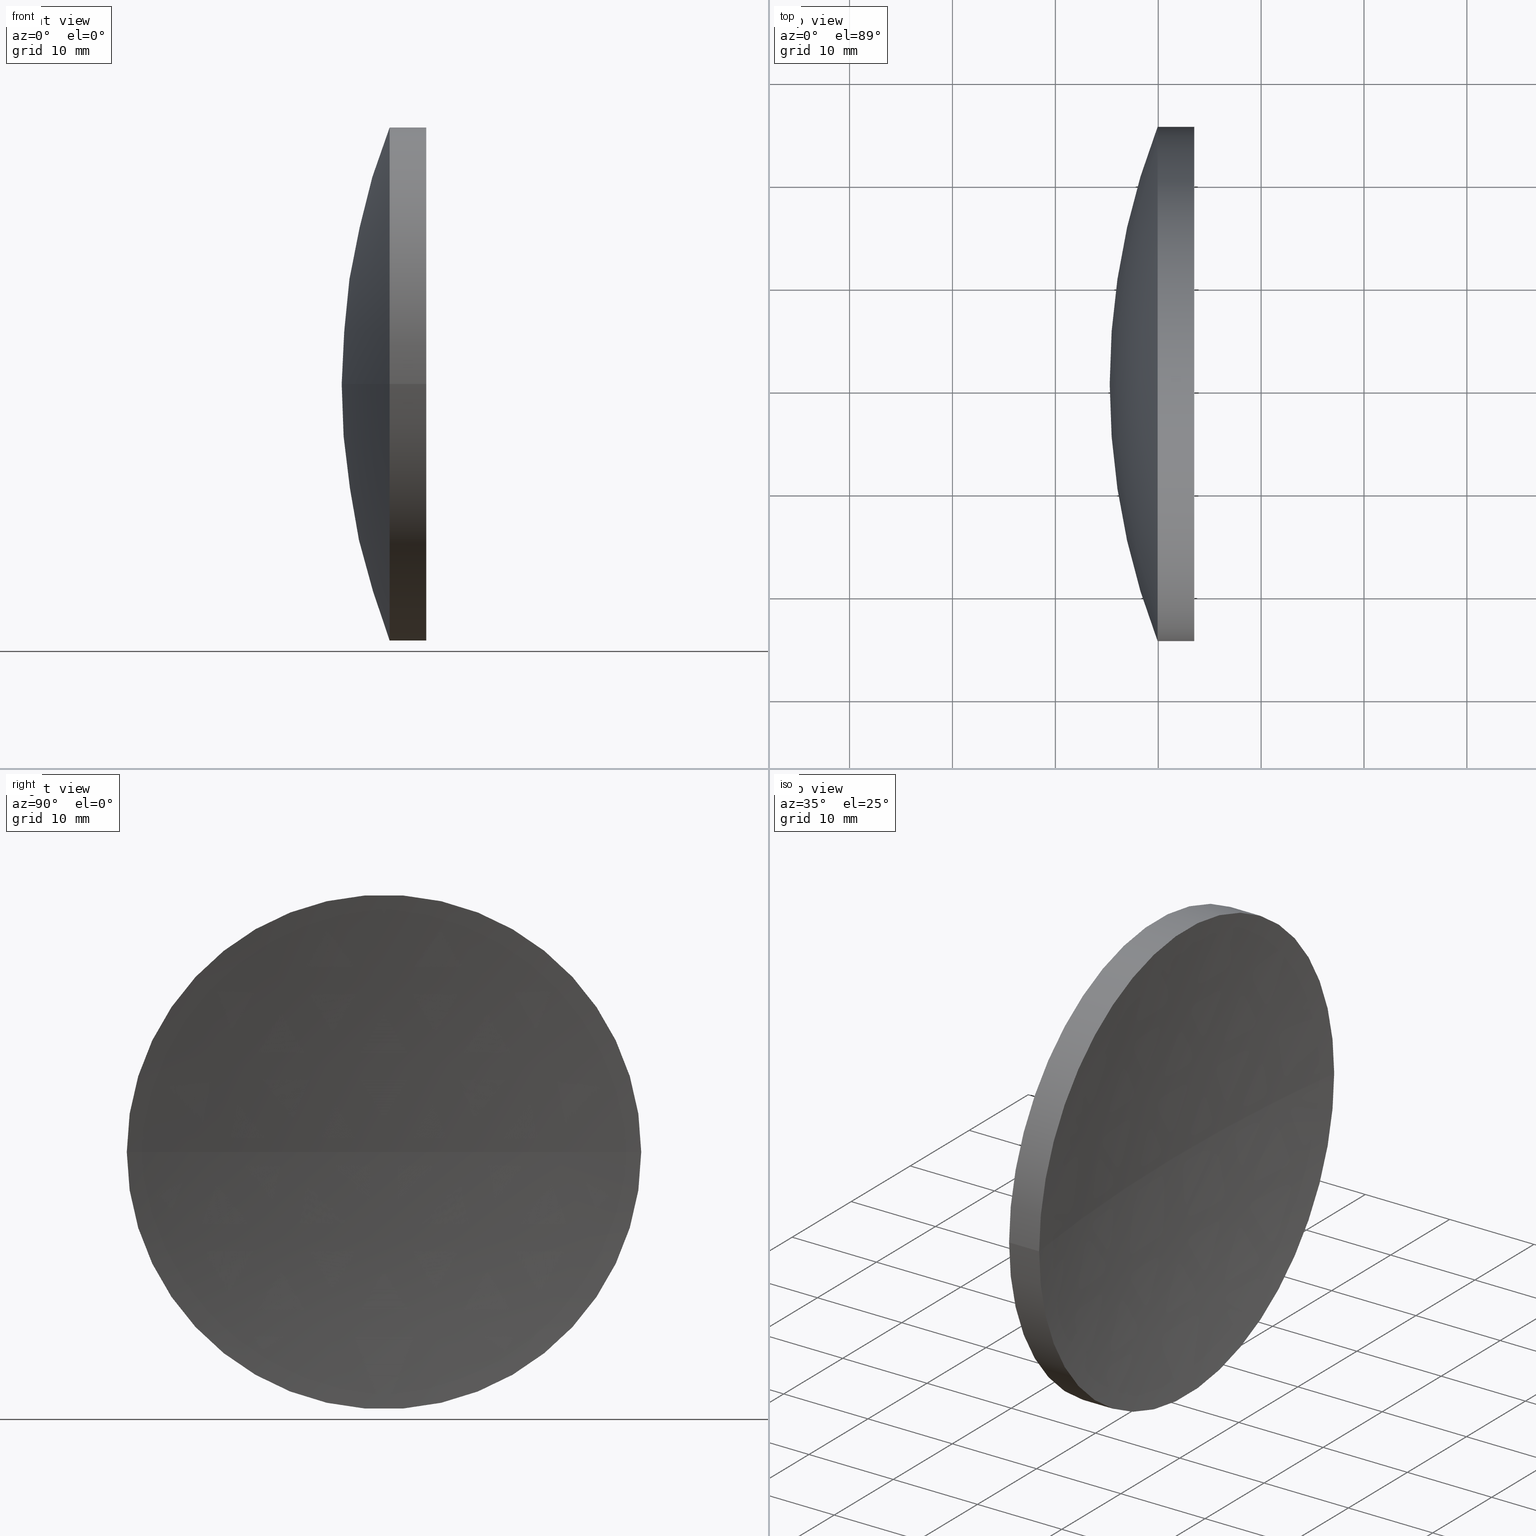
[diagram: canonical four-view strip — front | top / right | iso, engineering-drawing reading convention]
A machine part, canonical four-view strip (front | top / right | iso — engineering-drawing reading convention). The complete STEP part file that produces these views, byte-faithful:
ISO-10303-21;
HEADER;
FILE_DESCRIPTION (( 'STEP AP214' ),
    '1' );
FILE_NAME ('150021.STEP',
    '2019-07-05T01:45:44',
    ( '' ),
    ( '' ),
    'SwSTEP 2.0',
    'SolidWorks 2016',
    '' );
FILE_SCHEMA (( 'AUTOMOTIVE_DESIGN' ));
ENDSEC;

DATA;
#1 = CIRCLE ( 'NONE', #110, 24.99999999999995400 ) ;
#2 = AXIS2_PLACEMENT_3D ( 'NONE', #172, #174, #10 ) ;
#3 = DIRECTION ( 'NONE',  ( 1.000000000000000000, 0.0000000000000000000, 0.0000000000000000000 ) ) ;
#4 = PRODUCT_CONTEXT ( 'NONE', #31, 'mechanical' ) ;
#5 = DIRECTION ( 'NONE',  ( -1.000000000000000000, -6.937607244762875000E-016, -0.0000000000000000000 ) ) ;
#6 = CARTESIAN_POINT ( 'NONE',  ( 314.6821311214902200, 130.4336809418806800, 0.0000000000000000000 ) ) ;
#7 = VERTEX_POINT ( 'NONE', #156 ) ;
#8 = SPHERICAL_SURFACE ( 'NONE', #63, 193.1999999999999900 ) ;
#9 = ORIENTED_EDGE ( 'NONE', *, *, #28, .F. ) ;
#10 = DIRECTION ( 'NONE',  ( 1.110223024625159300E-015, -1.000000000000000000, 0.0000000000000000000 ) ) ;
#11 = SURFACE_SIDE_STYLE ('',( #124 ) ) ;
#12 = CARTESIAN_POINT ( 'NONE',  ( 445.0821311214901900, 130.4336809418806200, 0.0000000000000000000 ) ) ;
#13 = COLOUR_RGB ( '',1.000000000000000000, 1.000000000000000000, 1.000000000000000000 ) ;
#14 = DIRECTION ( 'NONE',  ( -8.496118506040342700E-032, 1.224646799147353200E-016, -1.000000000000000000 ) ) ;
#15 = FILL_AREA_STYLE_COLOUR ( '', #78 ) ;
#16 = SPHERICAL_SURFACE ( 'NONE', #98, 69.40000000000002000 ) ;
#17 = PRESENTATION_LAYER_ASSIGNMENT (  '', '', ( #138 ) ) ;
#18 = CYLINDRICAL_SURFACE ( 'NONE', #120, 24.99999999999994000 ) ;
#19 = CARTESIAN_POINT ( 'NONE',  ( 249.9414175016976000, 105.4336809418807400, -3.061616997868370400E-015 ) ) ;
#20 = EDGE_CURVE ( 'NONE', #149, #7, #119, .T. ) ;
#21 =( LENGTH_UNIT ( ) NAMED_UNIT ( * ) SI_UNIT ( .MILLI., .METRE. ) );
#22 = PRODUCT_DEFINITION_SHAPE ( 'NONE', 'NONE',  #35 ) ;
#23 = EDGE_CURVE ( 'NONE', #65, #37, #1, .T. ) ;
#24 = EDGE_LOOP ( 'NONE', ( #85, #145, #158 ) ) ;
#25 = DIRECTION ( 'NONE',  ( -0.0000000000000000000, 0.0000000000000000000, 1.000000000000000000 ) ) ;
#26 = AXIS2_PLACEMENT_3D ( 'NONE', #148, #71, #101 ) ;
#27 = SURFACE_STYLE_USAGE ( .BOTH. , #11 ) ;
#28 = EDGE_CURVE ( 'NONE', #149, #92, #36, .T. ) ;
#29 = ADVANCED_FACE ( 'NONE', ( #45 ), #55, .T. ) ;
#30 = ORIENTED_EDGE ( 'NONE', *, *, #52, .F. ) ;
#31 = APPLICATION_CONTEXT ( 'automotive_design' ) ;
#32 = STYLED_ITEM ( 'NONE', ( #48 ), #60 ) ;
#33 = SPHERICAL_SURFACE ( 'NONE', #167, 69.40000000000002000 ) ;
#34 = DIRECTION ( 'NONE',  ( -1.000000000000000000, -6.937607244762875000E-016, -0.0000000000000000000 ) ) ;
#35 = PRODUCT_DEFINITION ( 'δ֪', '', #74, #81 ) ;
#36 = CIRCLE ( 'NONE', #133, 69.40000000000002000 ) ;
#37 = VERTEX_POINT ( 'NONE', #186 ) ;
#38 = EDGE_CURVE ( 'NONE', #7, #92, #131, .T. ) ;
#39 = SHAPE_DEFINITION_REPRESENTATION ( #22, #60 ) ;
#40 = DIRECTION ( 'NONE',  ( 0.0000000000000000000, 0.0000000000000000000, -1.000000000000000000 ) ) ;
#41 = CARTESIAN_POINT ( 'NONE',  ( 245.2821311214902100, 130.4336809418806200, 0.0000000000000000000 ) ) ;
#42 = SURFACE_STYLE_FILL_AREA ( #66 ) ;
#43 = CIRCLE ( 'NONE', #26, 24.99999999999992500 ) ;
#44 = UNCERTAINTY_MEASURE_WITH_UNIT (LENGTH_MEASURE( 1.000000000000000100E-005 ), #21, 'distance_accuracy_value', 'NONE');
#45 = FACE_OUTER_BOUND ( 'NONE', #184, .T. ) ;
#46 = ORIENTED_EDGE ( 'NONE', *, *, #20, .F. ) ;
#47 = MECHANICAL_DESIGN_GEOMETRIC_PRESENTATION_REPRESENTATION (  '', ( #32 ), #180 ) ;
#48 = PRESENTATION_STYLE_ASSIGNMENT (( #168 ) ) ;
#49 = ORIENTED_EDGE ( 'NONE', *, *, #122, .T. ) ;
#50 = PRESENTATION_LAYER_ASSIGNMENT (  '', '', ( #32 ) ) ;
#51 = ORIENTED_EDGE ( 'NONE', *, *, #134, .T. ) ;
#52 = EDGE_CURVE ( 'NONE', #65, #106, #163, .T. ) ;
#53 =( NAMED_UNIT ( * ) SI_UNIT ( $, .STERADIAN. ) SOLID_ANGLE_UNIT ( ) );
#54 = DIRECTION ( 'NONE',  ( -0.0000000000000000000, 0.0000000000000000000, -1.000000000000000000 ) ) ;
#55 = CYLINDRICAL_SURFACE ( 'NONE', #2, 24.99999999999994000 ) ;
#56 = ORIENTED_EDGE ( 'NONE', *, *, #83, .F. ) ;
#57 = AXIS2_PLACEMENT_3D ( 'NONE', #182, #97, #3 ) ;
#58 = CARTESIAN_POINT ( 'NONE',  ( 314.6821311214902200, 130.4336809418806800, 0.0000000000000000000 ) ) ;
#59 = CARTESIAN_POINT ( 'NONE',  ( 251.8821311214902000, 130.4336809418805100, 0.0000000000000000000 ) ) ;
#60 = ADVANCED_BREP_SHAPE_REPRESENTATION ( '150021', ( #105, #57 ), #157 ) ;
#61 = PRESENTATION_STYLE_ASSIGNMENT (( #27 ) ) ;
#62 = EDGE_LOOP ( 'NONE', ( #121, #164, #46, #123 ) ) ;
#63 = AXIS2_PLACEMENT_3D ( 'NONE', #190, #40, #115 ) ;
#64 = ADVANCED_FACE ( 'NONE', ( #173 ), #16, .T. ) ;
#65 = VERTEX_POINT ( 'NONE', #144 ) ;
#66 = FILL_AREA_STYLE ('',( #183 ) ) ;
#67 = ORIENTED_EDGE ( 'NONE', *, *, #38, .T. ) ;
#68 = DIRECTION ( 'NONE',  ( 1.110223024625159900E-015, -1.000000000000000000, 0.0000000000000000000 ) ) ;
#69 = CARTESIAN_POINT ( 'NONE',  ( 445.0821311214901900, 130.4336809418806200, 0.0000000000000000000 ) ) ;
#70 =( LENGTH_UNIT ( ) NAMED_UNIT ( * ) SI_UNIT ( .MILLI., .METRE. ) );
#71 = DIRECTION ( 'NONE',  ( -1.000000000000000000, -6.937607244762875000E-016, -0.0000000000000000000 ) ) ;
#72 = CARTESIAN_POINT ( 'NONE',  ( 231.8889825959263400, 130.4336809418806500, 0.0000000000000000000 ) ) ;
#73 = ORIENTED_EDGE ( 'NONE', *, *, #100, .F. ) ;
#74 = PRODUCT_DEFINITION_FORMATION_WITH_SPECIFIED_SOURCE ( '�κ�', '', #108, .NOT_KNOWN. ) ;
#75 = FACE_OUTER_BOUND ( 'NONE', #125, .T. ) ;
#76 = ADVANCED_FACE ( 'NONE', ( #86 ), #8, .F. ) ;
#77 = AXIS2_PLACEMENT_3D ( 'NONE', #160, #14, #117 ) ;
#78 = COLOUR_RGB ( '',1.000000000000000000, 1.000000000000000000, 1.000000000000000000 ) ;
#79 = ORIENTED_EDGE ( 'NONE', *, *, #23, .T. ) ;
#80 =( NAMED_UNIT ( * ) PLANE_ANGLE_UNIT ( ) SI_UNIT ( $, .RADIAN. ) );
#81 = PRODUCT_DEFINITION_CONTEXT ( 'detailed design', #111, 'design' ) ;
#82 = VECTOR ( 'NONE', #152, 1000.000000000000000 ) ;
#83 = EDGE_CURVE ( 'NONE', #37, #65, #95, .T. ) ;
#84 = FACE_OUTER_BOUND ( 'NONE', #62, .T. ) ;
#85 = ORIENTED_EDGE ( 'NONE', *, *, #122, .F. ) ;
#86 = FACE_OUTER_BOUND ( 'NONE', #24, .T. ) ;
#87 = DIRECTION ( 'NONE',  ( -8.496118506040342700E-032, 1.224646799147353200E-016, -1.000000000000000000 ) ) ;
#88 = ORIENTED_EDGE ( 'NONE', *, *, #20, .T. ) ;
#89 = AXIS2_PLACEMENT_3D ( 'NONE', #99, #147, #102 ) ;
#90 = CARTESIAN_POINT ( 'NONE',  ( 231.8889825959263600, 105.4336809418807100, 0.0000000000000000000 ) ) ;
#91 = FILL_AREA_STYLE ('',( #15 ) ) ;
#92 = VERTEX_POINT ( 'NONE', #41 ) ;
#93 = AXIS2_PLACEMENT_3D ( 'NONE', #58, #25, #185 ) ;
#94 = AXIS2_PLACEMENT_3D ( 'NONE', #112, #34, #68 ) ;
#95 = CIRCLE ( 'NONE', #89, 24.99999999999995400 ) ;
#96 =( LENGTH_UNIT ( ) NAMED_UNIT ( * ) SI_UNIT ( .MILLI., .METRE. ) );
#97 = DIRECTION ( 'NONE',  ( 0.0000000000000000000, 0.0000000000000000000, 1.000000000000000000 ) ) ;
#98 = AXIS2_PLACEMENT_3D ( 'NONE', #188, #54, #132 ) ;
#99 = CARTESIAN_POINT ( 'NONE',  ( 253.5064541684908200, 130.4336809418806800, 0.0000000000000000000 ) ) ;
#100 = EDGE_CURVE ( 'NONE', #7, #149, #43, .T. ) ;
#101 = DIRECTION ( 'NONE',  ( 1.110223024625159900E-015, -1.000000000000000000, 0.0000000000000000000 ) ) ;
#102 = DIRECTION ( 'NONE',  ( 0.0000000000000000000, -1.000000000000000000, 0.0000000000000000000 ) ) ;
#103 = EDGE_LOOP ( 'NONE', ( #9, #88, #67 ) ) ;
#104 = PRODUCT_RELATED_PRODUCT_CATEGORY ( 'part', '', ( #108 ) ) ;
#105 = MANIFOLD_SOLID_BREP ( '��ת1', #162 ) ;
#106 = VERTEX_POINT ( 'NONE', #59 ) ;
#107 =( GEOMETRIC_REPRESENTATION_CONTEXT ( 3 ) GLOBAL_UNCERTAINTY_ASSIGNED_CONTEXT ( ( #166 ) ) GLOBAL_UNIT_ASSIGNED_CONTEXT ( ( #70, #161, #179 ) ) REPRESENTATION_CONTEXT ( 'NONE', 'WORKASPACE' ) );
#108 = PRODUCT ( '150021', '150021', '', ( #4 ) ) ;
#109 = APPLICATION_PROTOCOL_DEFINITION ( 'draft international standard', 'automotive_design', 1998, #31 ) ;
#110 = AXIS2_PLACEMENT_3D ( 'NONE', #176, #5, #113 ) ;
#111 = APPLICATION_CONTEXT ( 'automotive_design' ) ;
#112 = CARTESIAN_POINT ( 'NONE',  ( 249.9414175016976000, 130.4336809418806500, 0.0000000000000000000 ) ) ;
#113 = DIRECTION ( 'NONE',  ( 0.0000000000000000000, -1.000000000000000000, 0.0000000000000000000 ) ) ;
#114 = ORIENTED_EDGE ( 'NONE', *, *, #38, .F. ) ;
#115 = DIRECTION ( 'NONE',  ( -5.746495986672653100E-016, 1.000000000000000000, 0.0000000000000000000 ) ) ;
#116 = DIRECTION ( 'NONE',  ( 1.110223024625159300E-015, -1.000000000000000000, 0.0000000000000000000 ) ) ;
#117 = DIRECTION ( 'NONE',  ( 0.0000000000000000000, 1.000000000000000000, 1.224646799147353200E-016 ) ) ;
#118 = ADVANCED_FACE ( 'NONE', ( #84 ), #18, .T. ) ;
#119 = CIRCLE ( 'NONE', #94, 24.99999999999992500 ) ;
#120 = AXIS2_PLACEMENT_3D ( 'NONE', #72, #178, #116 ) ;
#121 = ORIENTED_EDGE ( 'NONE', *, *, #83, .T. ) ;
#122 = EDGE_CURVE ( 'NONE', #37, #106, #154, .T. ) ;
#123 = ORIENTED_EDGE ( 'NONE', *, *, #134, .F. ) ;
#124 = SURFACE_STYLE_FILL_AREA ( #91 ) ;
#125 = EDGE_LOOP ( 'NONE', ( #155, #151, #114 ) ) ;
#126 = DIRECTION ( 'NONE',  ( -7.998724961276342300E-016, 1.000000000000000000, 0.0000000000000000000 ) ) ;
#127 = AXIS2_PLACEMENT_3D ( 'NONE', #12, #135, #169 ) ;
#128 = SURFACE_SIDE_STYLE ('',( #42 ) ) ;
#129 = SPHERICAL_SURFACE ( 'NONE', #127, 193.1999999999999900 ) ;
#130 = UNCERTAINTY_MEASURE_WITH_UNIT (LENGTH_MEASURE( 1.000000000000000100E-005 ), #96, 'distance_accuracy_value', 'NONE');
#131 = CIRCLE ( 'NONE', #93, 69.40000000000002000 ) ;
#132 = DIRECTION ( 'NONE',  ( -7.998724961276342300E-016, 1.000000000000000000, 0.0000000000000000000 ) ) ;
#133 = AXIS2_PLACEMENT_3D ( 'NONE', #6, #87, #177 ) ;
#134 = EDGE_CURVE ( 'NONE', #37, #149, #170, .T. ) ;
#135 = DIRECTION ( 'NONE',  ( 0.0000000000000000000, 0.0000000000000000000, -1.000000000000000000 ) ) ;
#136 = VECTOR ( 'NONE', #189, 1000.000000000000000 ) ;
#137 = ADVANCED_FACE ( 'NONE', ( #165 ), #129, .F. ) ;
#138 = STYLED_ITEM ( 'NONE', ( #61 ), #105 ) ;
#139 = AXIS2_PLACEMENT_3D ( 'NONE', #69, #146, #159 ) ;
#140 =( NAMED_UNIT ( * ) SI_UNIT ( $, .STERADIAN. ) SOLID_ANGLE_UNIT ( ) );
#141 = DIRECTION ( 'NONE',  ( -0.0000000000000000000, 0.0000000000000000000, -1.000000000000000000 ) ) ;
#142 = APPLICATION_PROTOCOL_DEFINITION ( 'draft international standard', 'automotive_design', 1998, #111 ) ;
#143 = CARTESIAN_POINT ( 'NONE',  ( 231.8889825959263100, 155.4336809418806000, 3.061616997868375500E-015 ) ) ;
#144 = CARTESIAN_POINT ( 'NONE',  ( 253.5064541684908200, 155.4336809418807900, 0.0000000000000000000 ) ) ;
#145 = ORIENTED_EDGE ( 'NONE', *, *, #23, .F. ) ;
#146 = DIRECTION ( 'NONE',  ( 0.0000000000000000000, -0.0000000000000000000, 1.000000000000000000 ) ) ;
#147 = DIRECTION ( 'NONE',  ( -1.000000000000000000, -6.937607244762875000E-016, -0.0000000000000000000 ) ) ;
#148 = CARTESIAN_POINT ( 'NONE',  ( 249.9414175016976000, 130.4336809418806500, 0.0000000000000000000 ) ) ;
#149 = VERTEX_POINT ( 'NONE', #19 ) ;
#150 = EDGE_CURVE ( 'NONE', #65, #7, #192, .T. ) ;
#151 = ORIENTED_EDGE ( 'NONE', *, *, #28, .T. ) ;
#152 = DIRECTION ( 'NONE',  ( -1.000000000000000000, -6.937607244762875000E-016, -0.0000000000000000000 ) ) ;
#153 =( NAMED_UNIT ( * ) PLANE_ANGLE_UNIT ( ) SI_UNIT ( $, .RADIAN. ) );
#154 = CIRCLE ( 'NONE', #77, 193.1999999999999900 ) ;
#155 = ORIENTED_EDGE ( 'NONE', *, *, #100, .T. ) ;
#156 = CARTESIAN_POINT ( 'NONE',  ( 249.9414175016975700, 155.4336809418805700, 0.0000000000000000000 ) ) ;
#157 =( GEOMETRIC_REPRESENTATION_CONTEXT ( 3 ) GLOBAL_UNCERTAINTY_ASSIGNED_CONTEXT ( ( #44 ) ) GLOBAL_UNIT_ASSIGNED_CONTEXT ( ( #21, #153, #53 ) ) REPRESENTATION_CONTEXT ( 'NONE', 'WORKASPACE' ) );
#158 = ORIENTED_EDGE ( 'NONE', *, *, #52, .T. ) ;
#159 = DIRECTION ( 'NONE',  ( 1.000000000000000000, 0.0000000000000000000, 0.0000000000000000000 ) ) ;
#160 = CARTESIAN_POINT ( 'NONE',  ( 445.0821311214901900, 130.4336809418806200, 0.0000000000000000000 ) ) ;
#161 =( NAMED_UNIT ( * ) PLANE_ANGLE_UNIT ( ) SI_UNIT ( $, .RADIAN. ) );
#162 = CLOSED_SHELL ( 'NONE', ( #118, #137, #191, #64, #76, #29 ) ) ;
#163 = CIRCLE ( 'NONE', #139, 193.1999999999999300 ) ;
#164 = ORIENTED_EDGE ( 'NONE', *, *, #150, .T. ) ;
#165 = FACE_OUTER_BOUND ( 'NONE', #175, .T. ) ;
#166 = UNCERTAINTY_MEASURE_WITH_UNIT (LENGTH_MEASURE( 1.000000000000000100E-005 ), #70, 'distance_accuracy_value', 'NONE');
#167 = AXIS2_PLACEMENT_3D ( 'NONE', #171, #141, #126 ) ;
#168 = SURFACE_STYLE_USAGE ( .BOTH. , #128 ) ;
#169 = DIRECTION ( 'NONE',  ( -5.746495986672653100E-016, 1.000000000000000000, 0.0000000000000000000 ) ) ;
#170 = LINE ( 'NONE', #90, #136 ) ;
#171 = CARTESIAN_POINT ( 'NONE',  ( 314.6821311214902200, 130.4336809418806800, 0.0000000000000000000 ) ) ;
#172 = CARTESIAN_POINT ( 'NONE',  ( 231.8889825959263400, 130.4336809418806500, 0.0000000000000000000 ) ) ;
#173 = FACE_OUTER_BOUND ( 'NONE', #103, .T. ) ;
#174 = DIRECTION ( 'NONE',  ( -1.000000000000000000, -6.937607244762875000E-016, -0.0000000000000000000 ) ) ;
#175 = EDGE_LOOP ( 'NONE', ( #56, #49, #30 ) ) ;
#176 = CARTESIAN_POINT ( 'NONE',  ( 253.5064541684908200, 130.4336809418806800, 0.0000000000000000000 ) ) ;
#177 = DIRECTION ( 'NONE',  ( 0.0000000000000000000, 1.000000000000000000, 1.224646799147353200E-016 ) ) ;
#178 = DIRECTION ( 'NONE',  ( -1.000000000000000000, -6.937607244762875000E-016, -0.0000000000000000000 ) ) ;
#179 =( NAMED_UNIT ( * ) SI_UNIT ( $, .STERADIAN. ) SOLID_ANGLE_UNIT ( ) );
#180 =( GEOMETRIC_REPRESENTATION_CONTEXT ( 3 ) GLOBAL_UNCERTAINTY_ASSIGNED_CONTEXT ( ( #130 ) ) GLOBAL_UNIT_ASSIGNED_CONTEXT ( ( #96, #80, #140 ) ) REPRESENTATION_CONTEXT ( 'NONE', 'WORKASPACE' ) );
#181 = ORIENTED_EDGE ( 'NONE', *, *, #150, .F. ) ;
#182 = CARTESIAN_POINT ( 'NONE',  ( 0.0000000000000000000, 0.0000000000000000000, 0.0000000000000000000 ) ) ;
#183 = FILL_AREA_STYLE_COLOUR ( '', #13 ) ;
#184 = EDGE_LOOP ( 'NONE', ( #181, #79, #51, #73 ) ) ;
#185 = DIRECTION ( 'NONE',  ( 1.000000000000000000, 0.0000000000000000000, 0.0000000000000000000 ) ) ;
#186 = CARTESIAN_POINT ( 'NONE',  ( 253.5064541684908200, 105.4336809418804000, -3.061616997868395700E-015 ) ) ;
#187 = MECHANICAL_DESIGN_GEOMETRIC_PRESENTATION_REPRESENTATION (  '', ( #138 ), #107 ) ;
#188 = CARTESIAN_POINT ( 'NONE',  ( 314.6821311214902200, 130.4336809418806800, 0.0000000000000000000 ) ) ;
#189 = DIRECTION ( 'NONE',  ( -1.000000000000000000, -6.937607244762875000E-016, -0.0000000000000000000 ) ) ;
#190 = CARTESIAN_POINT ( 'NONE',  ( 445.0821311214901900, 130.4336809418806200, 0.0000000000000000000 ) ) ;
#191 = ADVANCED_FACE ( 'NONE', ( #75 ), #33, .T. ) ;
#192 = LINE ( 'NONE', #143, #82 ) ;
ENDSEC;
END-ISO-10303-21;
